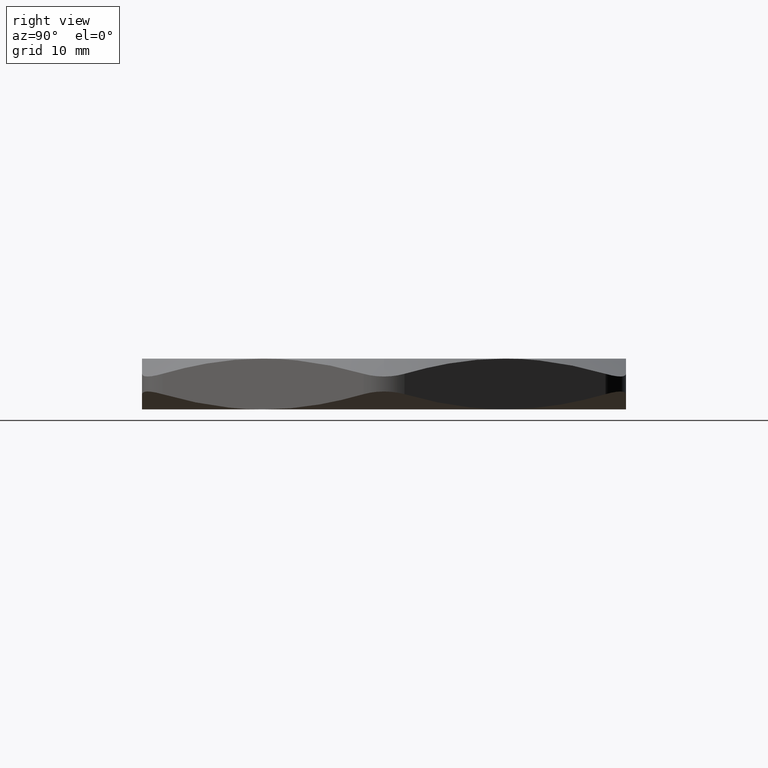
[diagram: clean part render]
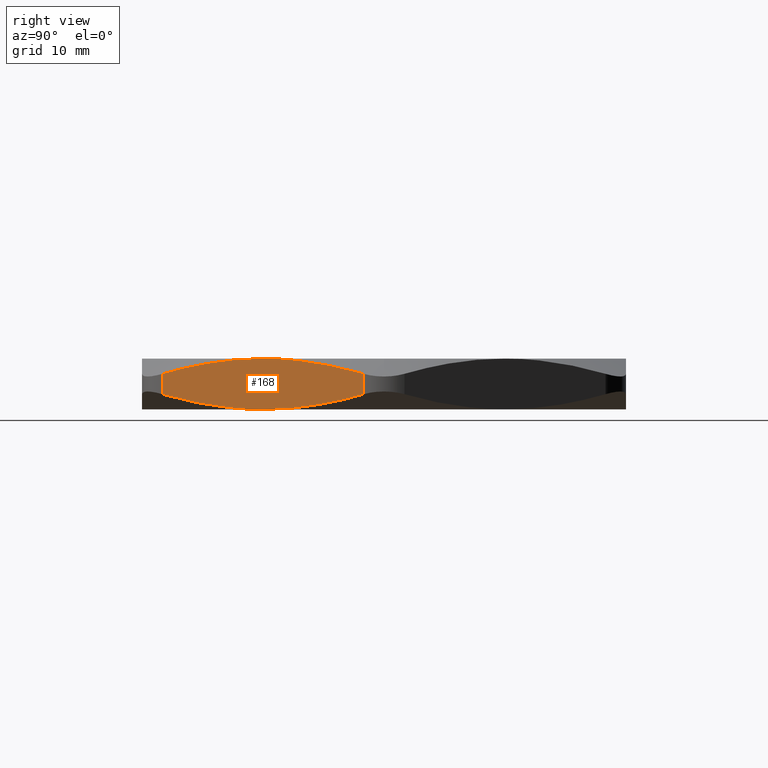
[diagram: same view with one face highlighted and labeled with its STEP entity id]
A machine part, right view. The second image highlights one B-rep face of the part: STEP entity #168.
In plain terms, the highlighted planar face has unit normal (-0.866, 0.5, 0).
Its self-contained STEP definition (entity closure, byte-faithful):
#168 = ADVANCED_FACE ( 'NONE', ( #1348 ), #1337, .F. ) ;
#169 = EDGE_LOOP ( 'NONE', ( #170, #174, #177, #180, #241, #243 ) ) ;
#170 = ORIENTED_EDGE ( 'NONE', *, *, #171, .F. ) ;
#171 = EDGE_CURVE ( 'NONE', #172, #173, #1332, .T. ) ;
#172 = VERTEX_POINT ( 'NONE', #1331 ) ;
#173 = VERTEX_POINT ( 'NONE', #1330 ) ;
#174 = ORIENTED_EDGE ( 'NONE', *, *, #175, .T. ) ;
#175 = EDGE_CURVE ( 'NONE', #172, #176, #1322, .T. ) ;
#176 = VERTEX_POINT ( 'NONE', #1008 ) ;
#177 = ORIENTED_EDGE ( 'NONE', *, *, #178, .F. ) ;
#178 = EDGE_CURVE ( 'NONE', #179, #176, #1375, .T. ) ;
#179 = VERTEX_POINT ( 'NONE', #1374 ) ;
#180 = ORIENTED_EDGE ( 'NONE', *, *, #181, .F. ) ;
#181 = EDGE_CURVE ( 'NONE', #182, #179, #1363, .T. ) ;
#182 = VERTEX_POINT ( 'NONE', #1362 ) ;
#183 = VERTEX_POINT ( 'NONE', #1361 ) ;
#241 = ORIENTED_EDGE ( 'NONE', *, *, #242, .T. ) ;
#242 = EDGE_CURVE ( 'NONE', #182, #183, #1526, .T. ) ;
#243 = ORIENTED_EDGE ( 'NONE', *, *, #244, .F. ) ;
#244 = EDGE_CURVE ( 'NONE', #173, #183, #1522, .T. ) ;
#1008 = CARTESIAN_POINT ( 'NONE',  ( 1.631014510460692300, -0.1249999999999993200, 0.2171635426208860500 ) ) ;
#1319 = DIRECTION ( 'NONE',  ( 0.0000000000000000000, 0.0000000000000000000, 1.000000000000000000 ) ) ;
#1320 = VECTOR ( 'NONE', #1319, 39.37007874015748100 ) ;
#1321 = CARTESIAN_POINT ( 'NONE',  ( 1.631014510460692300, -0.1249999999999993500, 0.3100000000000000000 ) ) ;
#1322 = LINE ( 'NONE', #1321, #1320 ) ;
#1324 = CARTESIAN_POINT ( 'NONE',  ( 1.277387470582046900, -0.7374999999999998200, 0.0000000000000000000 ) ) ;
#1325 = CARTESIAN_POINT ( 'NONE',  ( 1.337436567884004100, -0.6334919125243622100, -3.075996813178608900E-016 ) ) ;
#1326 = CARTESIAN_POINT ( 'NONE',  ( 1.396870369704162200, -0.5305495480848678700, 0.008567150564694002400 ) ) ;
#1327 = CARTESIAN_POINT ( 'NONE',  ( 1.514671812882177900, -0.3265114632956076000, 0.04054628231101647900 ) ) ;
#1328 = CARTESIAN_POINT ( 'NONE',  ( 1.573044007287979400, -0.2254078568354704300, 0.06389486850855712100 ) ) ;
#1329 = CARTESIAN_POINT ( 'NONE',  ( 1.631014510460692300, -0.1249999999999992600, 0.09283645737911383500 ) ) ;
#1330 = CARTESIAN_POINT ( 'NONE',  ( 1.277387470582046900, -0.7374999999999998200, 0.0000000000000000000 ) ) ;
#1331 = CARTESIAN_POINT ( 'NONE',  ( 1.631014510460692300, -0.1249999999999992600, 0.09283645737911383500 ) ) ;
#1332 = B_SPLINE_CURVE_WITH_KNOTS ( 'NONE', 3,
 ( #1329, #1328, #1327, #1326, #1325, #1324 ),
 .UNSPECIFIED., .F., .F.,
 ( 4, 2, 4 ),
 ( 0.003769668827820454900, 0.01282817793421258500, 0.02188668704060471600 ),
 .UNSPECIFIED. ) ;
#1333 = DIRECTION ( 'NONE',  ( -0.4999999999999998300, -0.8660254037844386000, 0.0000000000000000000 ) ) ;
#1334 = DIRECTION ( 'NONE',  ( -0.8660254037844387100, 0.4999999999999998900, 0.0000000000000000000 ) ) ;
#1335 = CARTESIAN_POINT ( 'NONE',  ( 0.8515916470546974800, -1.474999999999999900, 0.3100000000000000000 ) ) ;
#1336 = AXIS2_PLACEMENT_3D ( 'NONE', #1335, #1334, #1333 ) ;
#1337 = PLANE ( 'NONE',  #1336 ) ;
#1348 = FACE_OUTER_BOUND ( 'NONE', #169, .T. ) ;
#1353 = CARTESIAN_POINT ( 'NONE',  ( 1.277387470582046700, -0.7374999999999996000, 0.3100000000000000000 ) ) ;
#1354 = CARTESIAN_POINT ( 'NONE',  ( 1.217338373280089300, -0.8415080874756367700, 0.3100000000000001600 ) ) ;
#1355 = CARTESIAN_POINT ( 'NONE',  ( 1.157904571459930800, -0.9444504519151306600, 0.3014328494353059600 ) ) ;
#1356 = CARTESIAN_POINT ( 'NONE',  ( 1.040103128281915800, -1.148488536704391500, 0.2694537176889835200 ) ) ;
#1357 = CARTESIAN_POINT ( 'NONE',  ( 0.9817309338761131000, -1.249592143164528000, 0.2461051314914428100 ) ) ;
#1358 = CARTESIAN_POINT ( 'NONE',  ( 0.9237604307034007500, -1.349999999999999900, 0.2171635426208861100 ) ) ;
#1361 = CARTESIAN_POINT ( 'NONE',  ( 0.9237604307034007500, -1.350000000000000100, 0.09283645737911398700 ) ) ;
#1362 = CARTESIAN_POINT ( 'NONE',  ( 0.9237604307034007500, -1.349999999999999900, 0.2171635426208861100 ) ) ;
#1363 = B_SPLINE_CURVE_WITH_KNOTS ( 'NONE', 3,
 ( #1358, #1357, #1356, #1355, #1354, #1353 ),
 .UNSPECIFIED., .F., .F.,
 ( 4, 2, 4 ),
 ( 0.003769668827820457500, 0.01282817793421259200, 0.02188668704060472600 ),
 .UNSPECIFIED. ) ;
#1364 = CARTESIAN_POINT ( 'NONE',  ( 1.631014510460692300, -0.1249999999999993200, 0.2171635426208860500 ) ) ;
#1365 = CARTESIAN_POINT ( 'NONE',  ( 1.573168476950273000, -0.2251922690563779600, 0.2460429904094132400 ) ) ;
#1366 = CARTESIAN_POINT ( 'NONE',  ( 1.514863928480466600, -0.3261787093184456100, 0.2693862315497652600 ) ) ;
#1367 = CARTESIAN_POINT ( 'NONE',  ( 1.426495830610559300, -0.4792367445973438300, 0.2933981640764246100 ) ) ;
#1368 = CARTESIAN_POINT ( 'NONE',  ( 1.396887929954719200, -0.5305191328387102200, 0.2995684548229353200 ) ) ;
#1369 = CARTESIAN_POINT ( 'NONE',  ( 1.352225375622274800, -0.6078769461383088900, 0.3057968456581562400 ) ) ;
#1370 = CARTESIAN_POINT ( 'NONE',  ( 1.337296136579090500, -0.6337351466794454200, 0.3073692285703653600 ) ) ;
#1371 = CARTESIAN_POINT ( 'NONE',  ( 1.307351370823665900, -0.6856010023885892300, 0.3094721388188627600 ) ) ;
#1372 = CARTESIAN_POINT ( 'NONE',  ( 1.292337015067557700, -0.7116066294010836600, 0.3100000000000001600 ) ) ;
#1373 = CARTESIAN_POINT ( 'NONE',  ( 1.277387470582046700, -0.7374999999999996000, 0.3100000000000000000 ) ) ;
#1374 = CARTESIAN_POINT ( 'NONE',  ( 1.277387470582046700, -0.7374999999999996000, 0.3100000000000000000 ) ) ;
#1375 = B_SPLINE_CURVE_WITH_KNOTS ( 'NONE', 3,
 ( #1373, #1372, #1371, #1370, #1369, #1368, #1367, #1366, #1365, #1364 ),
 .UNSPECIFIED., .F., .F.,
 ( 4, 2, 2, 2, 4 ),
 ( 0.02188668704060472600, 0.02414185141347532200, 0.02639701578634592200, 0.03090734453208710000, 0.03992800202356946300 ),
 .UNSPECIFIED. ) ;
#1522 = B_SPLINE_CURVE_WITH_KNOTS ( 'NONE', 3,
 ( #1581, #1580, #1579, #1578, #1577, #1576, #1575, #1574, #1573, #1572 ),
 .UNSPECIFIED., .F., .F.,
 ( 4, 2, 2, 2, 4 ),
 ( 0.02188668704060471600, 0.02414185141347531900, 0.02639701578634591500, 0.03090734453208710000, 0.03992800202356947000 ),
 .UNSPECIFIED. ) ;
#1523 = DIRECTION ( 'NONE',  ( 0.0000000000000000000, 0.0000000000000000000, -1.000000000000000000 ) ) ;
#1524 = VECTOR ( 'NONE', #1523, 39.37007874015748100 ) ;
#1525 = CARTESIAN_POINT ( 'NONE',  ( 0.9237604307034007500, -1.349999999999999900, 0.3100000000000000000 ) ) ;
#1526 = LINE ( 'NONE', #1525, #1524 ) ;
#1572 = CARTESIAN_POINT ( 'NONE',  ( 0.9237604307034007500, -1.350000000000000100, 0.09283645737911398700 ) ) ;
#1573 = CARTESIAN_POINT ( 'NONE',  ( 0.9816064642138203600, -1.249807730943621700, 0.06395700959058675500 ) ) ;
#1574 = CARTESIAN_POINT ( 'NONE',  ( 1.039911012683627100, -1.148821290681554000, 0.04061376845023476800 ) ) ;
#1575 = CARTESIAN_POINT ( 'NONE',  ( 1.128279110553534100, -0.9957632554026557600, 0.01660183592357534300 ) ) ;
#1576 = CARTESIAN_POINT ( 'NONE',  ( 1.157887011209374000, -0.9444808671612888700, 0.01043154517706455400 ) ) ;
#1577 = CARTESIAN_POINT ( 'NONE',  ( 1.202549565541818100, -0.8671230538616899700, 0.004203154341843667700 ) ) ;
#1578 = CARTESIAN_POINT ( 'NONE',  ( 1.217478804585002900, -0.8412648533205535600, 0.002630771429634555400 ) ) ;
#1579 = CARTESIAN_POINT ( 'NONE',  ( 1.247423570340427100, -0.7893989976114096400, 0.0005278611811370413700 ) ) ;
#1580 = CARTESIAN_POINT ( 'NONE',  ( 1.262437926096535900, -0.7633933705989152100, -3.172927617641328200E-016 ) ) ;
#1581 = CARTESIAN_POINT ( 'NONE',  ( 1.277387470582046900, -0.7374999999999998200, 0.0000000000000000000 ) ) ;